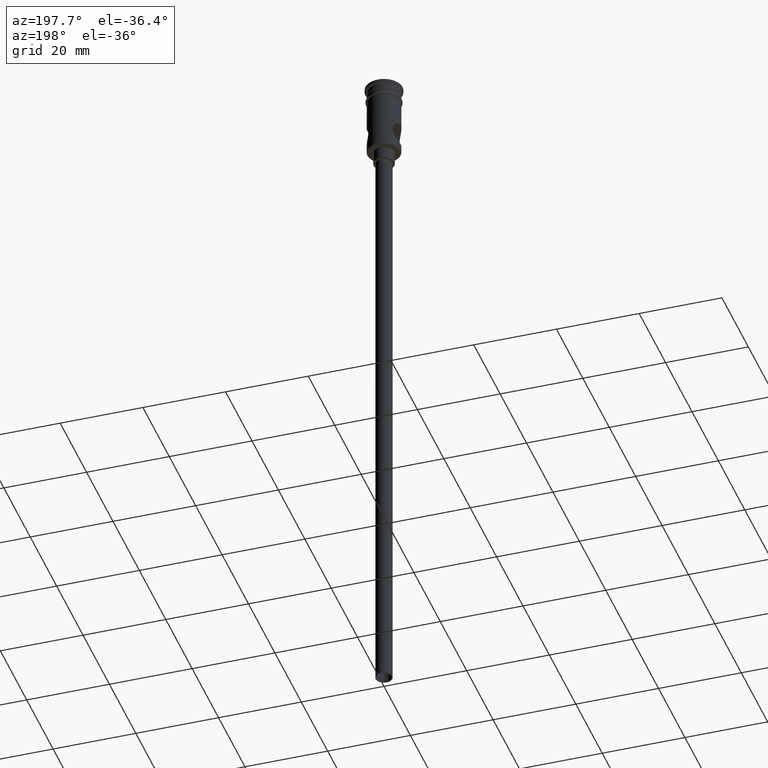
[diagram: clean part render]
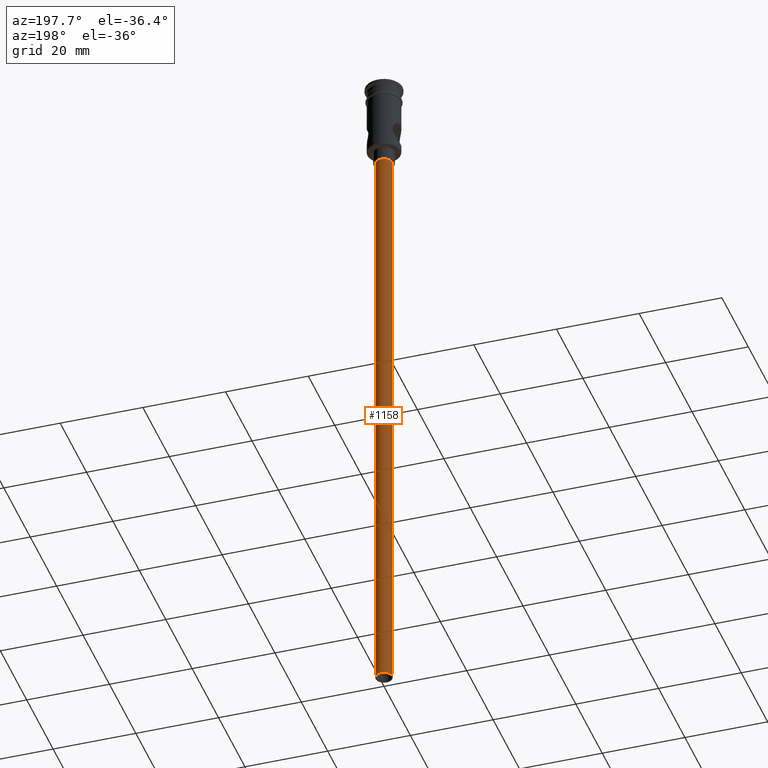
[diagram: same view with one face highlighted and labeled with its STEP entity id]
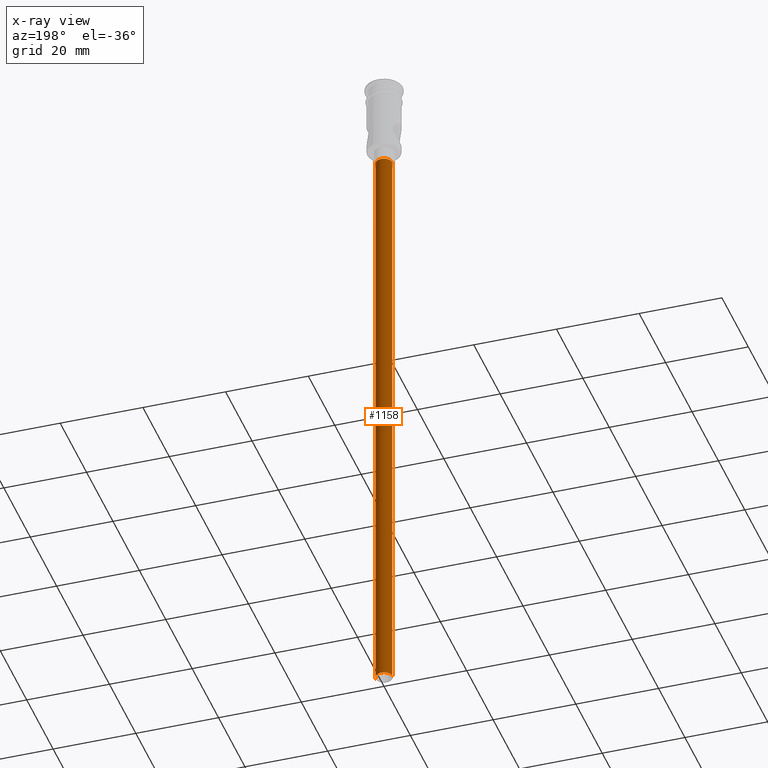
[diagram: x-ray of the same camera — body ghosted, the highlighted face saturated]
A machine part, auxiliary view. The second image highlights one B-rep face of the part: STEP entity #1158.
The next image is the same camera in x-ray: the body ghosted, the highlighted face saturated — about 0% of this face is hidden behind the body in this view.
In plain terms, the highlighted cylindrical surface (edge-blend (fillet) strip) has radius 2 mm, axis along (-0, -0, 1).
Its self-contained STEP definition (entity closure, byte-faithful):
#23 = ORIENTED_EDGE ( 'NONE', *, *, #867, .T. ) ;
#37 = ORIENTED_EDGE ( 'NONE', *, *, #298, .T. ) ;
#108 = LINE ( 'NONE', #815, #1187 ) ;
#185 = VERTEX_POINT ( 'NONE', #1309 ) ;
#208 = AXIS2_PLACEMENT_3D ( 'NONE', #1162, #691, #375 ) ;
#212 = CARTESIAN_POINT ( 'NONE',  ( 0.000000000000000000, 0.000000000000000000, -20.99999999999999645 ) ) ;
#226 = CARTESIAN_POINT ( 'NONE',  ( 0.000000000000000000, 0.000000000000000000, -167.9999999999999716 ) ) ;
#258 = EDGE_CURVE ( 'NONE', #185, #483, #319, .T. ) ;
#298 = EDGE_CURVE ( 'NONE', #961, #1222, #549, .T. ) ;
#313 = LINE ( 'NONE', #411, #439 ) ;
#319 = CIRCLE ( 'NONE', #977, 2.000000000000000000 ) ;
#375 = DIRECTION ( 'NONE',  ( 1.000000000000000000, 0.000000000000000000, 0.000000000000000000 ) ) ;
#379 = CYLINDRICAL_SURFACE ( 'NONE', #208, 2.000000000000000000 ) ;
#411 = CARTESIAN_POINT ( 'NONE',  ( 2.000000000000000000, 0.000000000000000000, -167.9999999999999716 ) ) ;
#439 = VECTOR ( 'NONE', #766, 1000.000000000000000 ) ;
#469 = EDGE_CURVE ( 'NONE', #483, #1222, #313, .T. ) ;
#483 = VERTEX_POINT ( 'NONE', #1441 ) ;
#517 = EDGE_LOOP ( 'NONE', ( #635, #23, #37, #865 ) ) ;
#549 = CIRCLE ( 'NONE', #767, 2.000000000000000000 ) ;
#608 = FACE_OUTER_BOUND ( 'NONE', #517, .T. ) ;
#635 = ORIENTED_EDGE ( 'NONE', *, *, #258, .F. ) ;
#656 = DIRECTION ( 'NONE',  ( 0.000000000000000000, 0.000000000000000000, -1.000000000000000000 ) ) ;
#691 = DIRECTION ( 'NONE',  ( -0.000000000000000000, -0.000000000000000000, 1.000000000000000000 ) ) ;
#766 = DIRECTION ( 'NONE',  ( -0.000000000000000000, -0.000000000000000000, 1.000000000000000000 ) ) ;
#767 = AXIS2_PLACEMENT_3D ( 'NONE', #212, #656, #1100 ) ;
#815 = CARTESIAN_POINT ( 'NONE',  ( -2.000000000000000000, 2.449293598294706414E-16, -167.9999999999999716 ) ) ;
#865 = ORIENTED_EDGE ( 'NONE', *, *, #469, .F. ) ;
#867 = EDGE_CURVE ( 'NONE', #185, #961, #108, .T. ) ;
#961 = VERTEX_POINT ( 'NONE', #1104 ) ;
#977 = AXIS2_PLACEMENT_3D ( 'NONE', #226, #1210, #1122 ) ;
#1100 = DIRECTION ( 'NONE',  ( -1.000000000000000000, 0.000000000000000000, 0.000000000000000000 ) ) ;
#1104 = CARTESIAN_POINT ( 'NONE',  ( -2.000000000000000000, 2.449293598294706414E-16, -20.99999999999999645 ) ) ;
#1122 = DIRECTION ( 'NONE',  ( -1.000000000000000000, 0.000000000000000000, 0.000000000000000000 ) ) ;
#1158 = ADVANCED_FACE ( 'NONE', ( #608 ), #379, .T. ) ;
#1162 = CARTESIAN_POINT ( 'NONE',  ( 0.000000000000000000, 0.000000000000000000, -167.9999999999999716 ) ) ;
#1187 = VECTOR ( 'NONE', #1264, 1000.000000000000000 ) ;
#1193 = CARTESIAN_POINT ( 'NONE',  ( 2.000000000000000000, 0.000000000000000000, -20.99999999999999645 ) ) ;
#1210 = DIRECTION ( 'NONE',  ( 0.000000000000000000, 0.000000000000000000, -1.000000000000000000 ) ) ;
#1222 = VERTEX_POINT ( 'NONE', #1193 ) ;
#1264 = DIRECTION ( 'NONE',  ( -0.000000000000000000, -0.000000000000000000, 1.000000000000000000 ) ) ;
#1309 = CARTESIAN_POINT ( 'NONE',  ( -2.000000000000000000, 2.449293598294706414E-16, -167.9999999999999716 ) ) ;
#1441 = CARTESIAN_POINT ( 'NONE',  ( 2.000000000000000000, 0.000000000000000000, -167.9999999999999716 ) ) ;